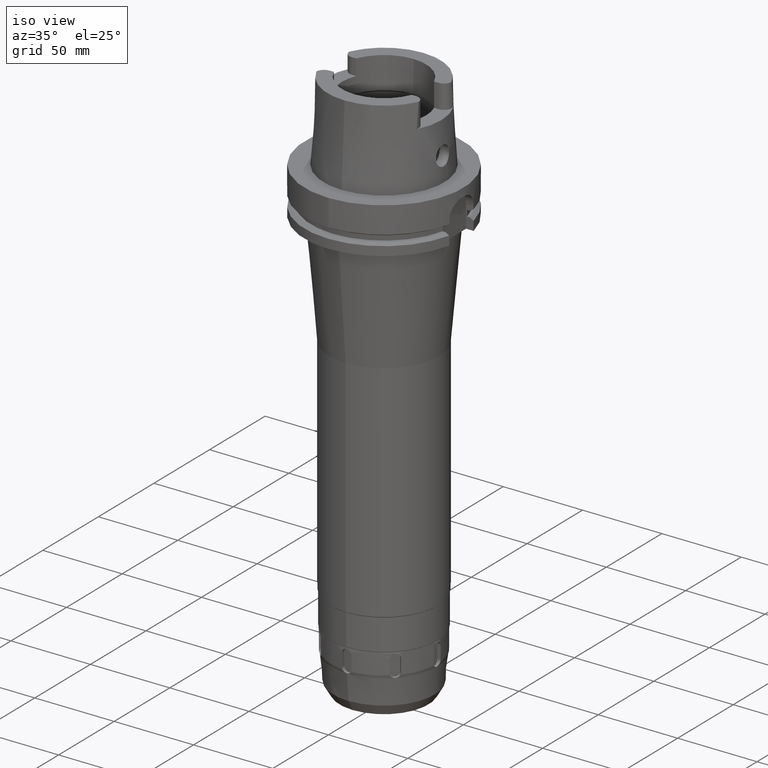
[diagram: clean part render]
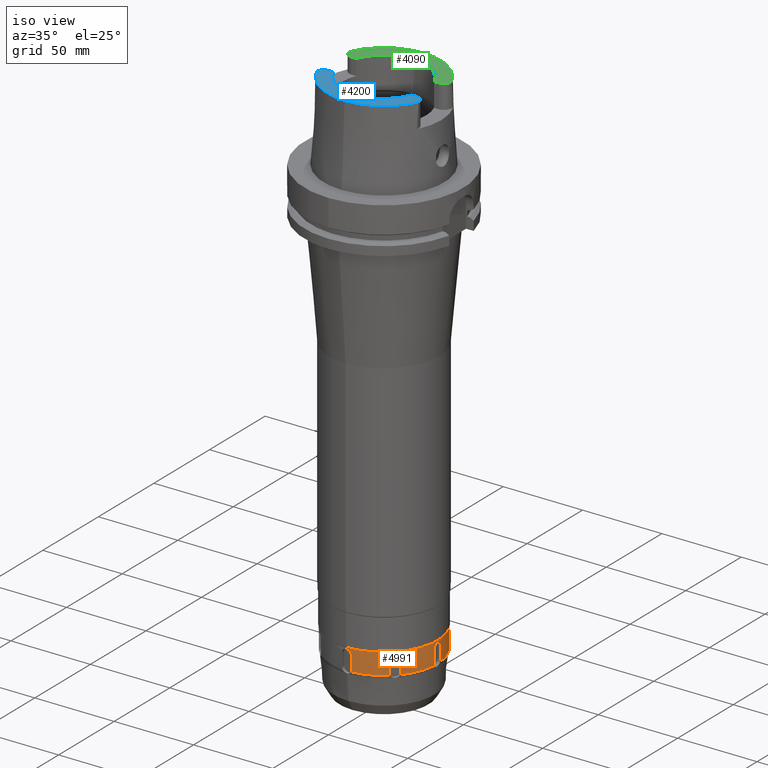
[diagram: same view with three faces highlighted in distinct colors, each labeled with its STEP entity id]
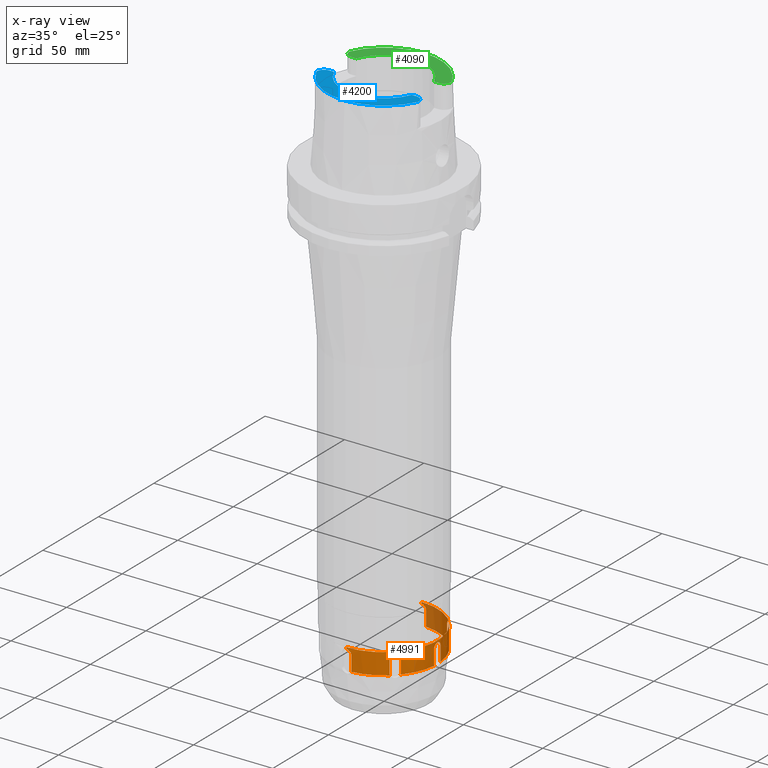
[diagram: x-ray of the same camera — body ghosted, the three highlighted faces saturated]
A machine part, iso view with three faces highlighted in distinct colors.
The next image is the same camera in x-ray (body ghosted, the three faces saturated) — at least one of them is partly hidden behind the body in this view.
Their STEP definitions:

[orange] entity #4991 — the highlighted cylindrical surface (partial cylindrical patch) has radius 33.75 mm, axis along (0, 0, 1).
#1115=CARTESIAN_POINT('',(2.572974637336E1,2.184130650372E1,-2.752999988523E2));
#1124=CARTESIAN_POINT('',(2.184127844835E1,2.572982219476E1,-2.752998305766E2));
#1129=CARTESIAN_POINT('',(0.E0,0.E0,-2.753E2));
#1130=DIRECTION('',(0.E0,0.E0,1.E0));
#1131=DIRECTION('',(6.471499945520E-1,7.623626988195E-1,0.E0));
#1132=AXIS2_PLACEMENT_3D('',#1129,#1130,#1131);
#1161=CARTESIAN_POINT('',(2.749614365686E0,-3.363784794479E1,
-2.752998335251E2));
#1166=CARTESIAN_POINT('',(0.E0,0.E0,-2.753E2));
#1167=DIRECTION('',(0.E0,0.E0,1.E0));
#1168=DIRECTION('',(8.146768445162E-2,-9.966759836527E-1,0.E0));
#1169=AXIS2_PLACEMENT_3D('',#1166,#1167,#1168);
#1183=CARTESIAN_POINT('',(2.572982219732E1,-2.184127844536E1,
-2.752998305682E2));
#1188=CARTESIAN_POINT('',(0.E0,0.E0,-2.753E2));
#1189=DIRECTION('',(0.E0,0.E0,1.E0));
#1190=DIRECTION('',(7.623626988355E-1,-6.471499945331E-1,0.E0));
#1191=AXIS2_PLACEMENT_3D('',#1188,#1189,#1190);
#1205=CARTESIAN_POINT('',(3.363784785298E1,2.749615655542E0,-2.752998305692E2));
#1210=CARTESIAN_POINT('',(0.E0,0.E0,-2.753E2));
#1211=DIRECTION('',(0.E0,0.E0,1.E0));
#1212=DIRECTION('',(9.966759836495E-1,8.146768449110E-2,0.E0));
#1213=AXIS2_PLACEMENT_3D('',#1210,#1211,#1212);
#1232=CARTESIAN_POINT('',(2.164906564405E1,2.589170633117E1,-2.661E2));
#1233=CARTESIAN_POINT('',(2.164906564405E1,2.589170633117E1,-2.657762900354E2));
#1234=CARTESIAN_POINT('',(2.172548758033E1,2.582811049954E1,-2.651632462130E2));
#1235=CARTESIAN_POINT('',(2.205776370793E1,2.554640606938E1,-2.643059235911E2));
#1236=CARTESIAN_POINT('',(2.256459709998E1,2.510189989961E1,-2.636332016839E2));
#1237=CARTESIAN_POINT('',(2.319608496984E1,2.452085469830E1,-2.631989895134E2));
#1238=CARTESIAN_POINT('',(2.363600564662E1,2.409370216023E1,-2.630999992646E2));
#1239=CARTESIAN_POINT('',(2.386485390342E1,2.386485390342E1,-2.630999992646E2));
#1244=CARTESIAN_POINT('',(2.386485390342E1,2.386485390342E1,-2.630999992646E2));
#1245=CARTESIAN_POINT('',(2.409343373051E1,2.363627407633E1,-2.630999992646E2));
#1246=CARTESIAN_POINT('',(2.452019567950E1,2.319677267820E1,-2.631987734806E2));
#1247=CARTESIAN_POINT('',(2.510095861163E1,2.256564400745E1,-2.636322353427E2));
#1248=CARTESIAN_POINT('',(2.554575486596E1,2.205852393052E1,-2.643045047276E2));
#1249=CARTESIAN_POINT('',(2.582791347362E1,2.172572448869E1,-2.651620396930E2));
#1250=CARTESIAN_POINT('',(2.589170633117E1,2.164906564405E1,-2.657757988084E2));
#1251=CARTESIAN_POINT('',(2.589170633117E1,2.164906564405E1,-2.661E2));
#1256=DIRECTION('',(-3.312153382080E-6,-3.593123775678E-6,-9.999999999881E-1));
#1257=VECTOR('',#1256,8.000000013231E0);
#1258=CARTESIAN_POINT('',(2.589170633117E1,2.164906564405E1,-2.661E2));
#1259=LINE('',#1258,#1257);
#1263=CARTESIAN_POINT('',(2.589167983394E1,2.164903689906E1,-2.741000000131E2));
#1264=CARTESIAN_POINT('',(2.589167983394E1,2.164903689906E1,-2.742380585447E2));
#1265=CARTESIAN_POINT('',(2.587960009176E1,2.166358552853E1,-2.745110854267E2));
#1266=CARTESIAN_POINT('',(2.582510724116E1,2.172855197206E1,-2.749159139675E2));
#1267=CARTESIAN_POINT('',(2.576558189888E1,2.179909114710E1,-2.751735415383E2));
#1268=CARTESIAN_POINT('',(2.572974637336E1,2.184130650372E1,-2.752999988523E2));
#1273=CARTESIAN_POINT('',(3.363784785298E1,2.749615655542E0,-2.752998305692E2));
#1274=CARTESIAN_POINT('',(3.363333853020E1,2.804782728787E0,-2.751733631601E2));
#1275=CARTESIAN_POINT('',(3.362550344315E1,2.896678164685E0,-2.749159972750E2));
#1276=CARTESIAN_POINT('',(3.361809574720E1,2.981178182667E0,-2.745110616971E2));
#1277=CARTESIAN_POINT('',(3.361640187336E1,3.000001464595E0,-2.742380585772E2));
#1278=CARTESIAN_POINT('',(3.361640187336E1,3.000001464595E0,-2.741000000002E2));
#1283=DIRECTION('',(4.664510289039E-8,-1.830743154815E-7,1.E0));
#1284=VECTOR('',#1283,8.000000000159E0);
#1285=CARTESIAN_POINT('',(3.361640187336E1,3.000001464595E0,-2.741000000002E2));
#1286=LINE('',#1285,#1284);
#1290=CARTESIAN_POINT('',(3.361640224652E1,3.E0,-2.661E2));
#1291=CARTESIAN_POINT('',(3.361640224652E1,3.E0,-2.657765242118E2));
#1292=CARTESIAN_POINT('',(3.362546078150E1,2.901094502573E0,-2.651637988241E2));
#1293=CARTESIAN_POINT('',(3.366118211249E1,2.467514086140E0,-2.643068067244E2));
#1294=CARTESIAN_POINT('',(3.370528813569E1,1.794443624510E0,-2.636333674698E2));
#1295=CARTESIAN_POINT('',(3.374095804270E1,9.372390158075E-1,
-2.631991538084E2));
#1296=CARTESIAN_POINT('',(3.375000005416E1,3.238285435396E-1,
-2.630999992658E2));
#1297=CARTESIAN_POINT('',(3.375000005416E1,-3.189301113319E-14,
-2.630999992658E2));
#1302=CARTESIAN_POINT('',(3.375000005416E1,-3.189301113319E-14,
-2.630999992658E2));
#1303=CARTESIAN_POINT('',(3.375000005416E1,-3.231069847003E-1,
-2.630999992658E2));
#1304=CARTESIAN_POINT('',(3.374099873256E1,-9.354509905620E-1,
-2.631987118667E2));
#1305=CARTESIAN_POINT('',(3.370540883619E1,-1.792197419109E0,
-2.636318032273E2));
#1306=CARTESIAN_POINT('',(3.366130667837E1,-2.465895814512E0,
-2.643045081205E2));
#1307=CARTESIAN_POINT('',(3.362550430514E1,-2.900624419884E0,
-2.651619127088E2));
#1308=CARTESIAN_POINT('',(3.361640224652E1,-3.E0,-2.657757581241E2));
#1309=CARTESIAN_POINT('',(3.361640224652E1,-3.E0,-2.661E2));
#1314=DIRECTION('',(-4.882768232324E-6,-1.986760747075E-7,-9.999999999881E-1));
#1315=VECTOR('',#1314,8.000000013231E0);
#1316=CARTESIAN_POINT('',(3.361640224652E1,-3.E0,-2.661E2));
#1317=LINE('',#1316,#1315);
#1321=CARTESIAN_POINT('',(3.361636318437E1,-3.000001589409E0,
-2.741000000131E2));
#1322=CARTESIAN_POINT('',(3.361636318437E1,-3.000001589409E0,
-2.742380585447E2));
#1323=CARTESIAN_POINT('',(3.361810895132E1,-2.981172487244E0,
-2.745110854267E2));
#1324=CARTESIAN_POINT('',(3.362551489990E1,-2.896702010275E0,
-2.749159139675E2));
#1325=CARTESIAN_POINT('',(3.363330285573E1,-2.804732508115E0,
-2.751735415382E2));
#1326=CARTESIAN_POINT('',(3.363781407756E1,-2.749542200088E0,
-2.752999988523E2));
#1331=CARTESIAN_POINT('',(2.572982219732E1,-2.184127844536E1,
-2.752998305682E2));
#1332=CARTESIAN_POINT('',(2.576564263611E1,-2.179908086115E1,
-2.751733631591E2));
#1333=CARTESIAN_POINT('',(2.582508227854E1,-2.172856073240E1,
-2.749159972755E2));
#1334=CARTESIAN_POINT('',(2.587959478234E1,-2.166357216451E1,
-2.745110616970E2));
#1335=CARTESIAN_POINT('',(2.589170710293E1,-2.164906434456E1,
-2.742380585772E2));
#1336=CARTESIAN_POINT('',(2.589170710293E1,-2.164906434456E1,
-2.741000000002E2));
#1341=DIRECTION('',(-9.647002085863E-8,-1.624361587428E-7,1.E0));
#1342=VECTOR('',#1341,8.000000000160E0);
#1343=CARTESIAN_POINT('',(2.589170710293E1,-2.164906434456E1,
-2.741000000002E2));
#1344=LINE('',#1343,#1342);
#1348=CARTESIAN_POINT('',(2.589170633117E1,-2.164906564405E1,-2.661E2));
#1349=CARTESIAN_POINT('',(2.589170633117E1,-2.164906564405E1,
-2.657764475953E2));
#1350=CARTESIAN_POINT('',(2.582817629502E1,-2.172540841174E1,
-2.651636154931E2));
#1351=CARTESIAN_POINT('',(2.554655747714E1,-2.205758832734E1,
-2.643062119220E2));
#1352=CARTESIAN_POINT('',(2.510199332659E1,-2.256449406994E1,
-2.636332839008E2));
#1353=CARTESIAN_POINT('',(2.452092489901E1,-2.319601141922E1,
-2.631990170107E2));
#1354=CARTESIAN_POINT('',(2.409372786133E1,-2.363597994551E1,
-2.630999992646E2));
#1355=CARTESIAN_POINT('',(2.386485390342E1,-2.386485390342E1,
-2.630999992646E2));
#1360=CARTESIAN_POINT('',(2.386485390342E1,-2.386485390342E1,
-2.630999992646E2));
#1361=CARTESIAN_POINT('',(2.363626550475E1,-2.409344230208E1,
-2.630999992646E2));
#1362=CARTESIAN_POINT('',(2.319673081999E1,-2.452023882115E1,
-2.631987581832E2));
#1363=CARTESIAN_POINT('',(2.256531877008E1,-2.510125347810E1,
-2.636325051195E2));
#1364=CARTESIAN_POINT('',(2.205821148842E1,-2.554602301253E1,
-2.643050563678E2));
#1365=CARTESIAN_POINT('',(2.172559142616E1,-2.582802441680E1,
-2.651626620576E2));
#1366=CARTESIAN_POINT('',(2.164906564405E1,-2.589170633117E1,
-2.657760599394E2));
#1367=CARTESIAN_POINT('',(2.164906564405E1,-2.589170633117E1,-2.661E2));
#1372=DIRECTION('',(-3.593082684103E-6,3.312177783450E-6,-9.999999999881E-1));
#1373=VECTOR('',#1372,8.000000013231E0);
#1374=CARTESIAN_POINT('',(2.164906564405E1,-2.589170633117E1,-2.661E2));
#1375=LINE('',#1374,#1373);
#1379=CARTESIAN_POINT('',(2.164903689939E1,-2.589167983375E1,
-2.741000000131E2));
#1380=CARTESIAN_POINT('',(2.164903689939E1,-2.589167983375E1,
-2.742380585446E2));
#1381=CARTESIAN_POINT('',(2.166358553057E1,-2.587960009002E1,
-2.745110854265E2));
#1382=CARTESIAN_POINT('',(2.172855197353E1,-2.582510723991E1,
-2.749159139670E2));
#1383=CARTESIAN_POINT('',(2.179909114742E1,-2.576558189866E1,
-2.751735415380E2));
#1384=CARTESIAN_POINT('',(2.184130650409E1,-2.572974637309E1,
-2.752999988522E2));
#1389=CARTESIAN_POINT('',(2.749614365686E0,-3.363784794479E1,
-2.752998335251E2));
#1390=CARTESIAN_POINT('',(2.804781846415E0,-3.363333858870E1,
-2.751733662947E2));
#1391=CARTESIAN_POINT('',(2.896678574588E0,-3.362550341602E1,
-2.749159958116E2));
#1392=CARTESIAN_POINT('',(2.981178062673E0,-3.361809575518E1,
-2.745110621149E2));
#1393=CARTESIAN_POINT('',(3.000001464264E0,-3.361640187344E1,
-2.742380585772E2));
#1394=CARTESIAN_POINT('',(3.000001464264E0,-3.361640187344E1,
-2.741000000002E2));
#1399=DIRECTION('',(-1.830329524574E-7,-4.663456376526E-8,1.E0));
#1400=VECTOR('',#1399,8.000000000159E0);
#1401=CARTESIAN_POINT('',(3.000001464264E0,-3.361640187344E1,
-2.741000000002E2));
#1402=LINE('',#1401,#1400);
#1406=CARTESIAN_POINT('',(3.E0,-3.361640224652E1,-2.661E2));
#1407=CARTESIAN_POINT('',(3.E0,-3.361640224652E1,-2.657763211148E2));
#1408=CARTESIAN_POINT('',(2.900998212270E0,-3.362547078604E1,
-2.651633463576E2));
#1409=CARTESIAN_POINT('',(2.467070875475E0,-3.366121330021E1,
-2.643062840599E2));
#1410=CARTESIAN_POINT('',(1.794617371397E0,-3.370527563701E1,
-2.636335682929E2));
#1411=CARTESIAN_POINT('',(9.374200708088E-1,-3.374095419874E1,
-2.631991851139E2));
#1412=CARTESIAN_POINT('',(3.239220140160E-1,-3.375E1,-2.631E2));
#1413=CARTESIAN_POINT('',(8.440849451245E-14,-3.375E1,-2.631E2));
#1418=DIRECTION('',(-4.837532821173E-14,-2.706829469562E-14,-1.E0));
#1419=VECTOR('',#1418,1.05E0);
#1420=CARTESIAN_POINT('',(0.E0,3.375E1,-2.6205E2));
#1421=LINE('',#1420,#1419);
#1425=CARTESIAN_POINT('',(-4.666091167519E-14,3.375E1,-2.631E2));
#1426=CARTESIAN_POINT('',(3.235493710465E-1,3.375E1,-2.631E2));
#1427=CARTESIAN_POINT('',(9.365025065704E-1,3.374097536358E1,
-2.631989548584E2));
#1428=CARTESIAN_POINT('',(1.793511287900E0,3.370533548089E1,-2.636327902259E2));
#1429=CARTESIAN_POINT('',(2.466309743144E0,3.366127205772E1,-2.643051929952E2));
#1430=CARTESIAN_POINT('',(2.900785903624E0,3.362549046289E1,-2.651624839744E2));
#1431=CARTESIAN_POINT('',(3.E0,3.361640224652E1,-2.657759729595E2));
#1432=CARTESIAN_POINT('',(3.E0,3.361640224652E1,-2.661E2));
#1437=DIRECTION('',(1.986142549916E-7,-4.882752476927E-6,-9.999999999881E-1));
#1438=VECTOR('',#1437,8.000000013230E0);
#1439=CARTESIAN_POINT('',(3.E0,3.361640224652E1,-2.661E2));
#1440=LINE('',#1439,#1438);
#1444=CARTESIAN_POINT('',(3.000001588914E0,3.361636318450E1,-2.741000000131E2));
#1445=CARTESIAN_POINT('',(3.000001588914E0,3.361636318450E1,-2.742380585446E2));
#1446=CARTESIAN_POINT('',(2.981172482818E0,3.361810895166E1,-2.745110854294E2));
#1447=CARTESIAN_POINT('',(2.896702010706E0,3.362551489991E1,-2.749159139562E2));
#1448=CARTESIAN_POINT('',(2.804732501199E0,3.363330285624E1,-2.751735415606E2));
#1449=CARTESIAN_POINT('',(2.749542190119E0,3.363781407832E1,-2.752999988736E2));
#1454=CARTESIAN_POINT('',(2.184127844835E1,2.572982219476E1,-2.752998305766E2));
#1455=CARTESIAN_POINT('',(2.179908086323E1,2.576564263433E1,-2.751733631679E2));
#1456=CARTESIAN_POINT('',(2.172856073233E1,2.582508227862E1,-2.749159972710E2));
#1457=CARTESIAN_POINT('',(2.166357216590E1,2.587959478115E1,-2.745110616981E2));
#1458=CARTESIAN_POINT('',(2.164906434474E1,2.589170710282E1,-2.742380585772E2));
#1459=CARTESIAN_POINT('',(2.164906434474E1,2.589170710282E1,-2.741000000002E2));
#1464=DIRECTION('',(1.624132179824E-7,-9.645639664576E-8,1.E0));
#1465=VECTOR('',#1464,8.000000000159E0);
#1466=CARTESIAN_POINT('',(2.164906434474E1,2.589170710282E1,-2.741000000002E2));
#1467=LINE('',#1466,#1465);
#2064=DIRECTION('',(5.577681504256E-14,2.706829469562E-14,-1.E0));
#2065=VECTOR('',#2064,1.05E0);
#2066=CARTESIAN_POINT('',(2.584283871776E-14,-3.375E1,-2.6205E2));
#2067=LINE('',#2066,#2065);
#2429=CARTESIAN_POINT('',(0.E0,0.E0,-2.6205E2));
#2430=DIRECTION('',(0.E0,0.E0,-1.E0));
#2431=DIRECTION('',(0.E0,1.E0,0.E0));
#2432=AXIS2_PLACEMENT_3D('',#2429,#2430,#2431);
#3711=VERTEX_POINT('',#1115);
#3712=VERTEX_POINT('',#1124);
#3713=CARTESIAN_POINT('',(2.749534261608E0,3.363781445553E1,-2.753E2));
#3714=VERTEX_POINT('',#3713);
#3718=VERTEX_POINT('',#1161);
#3719=CARTESIAN_POINT('',(2.184131238393E1,-2.572974102761E1,-2.753E2));
#3720=VERTEX_POINT('',#3719);
#3721=VERTEX_POINT('',#1183);
#3722=CARTESIAN_POINT('',(3.363781445537E1,-2.749534263600E0,-2.753E2));
#3723=VERTEX_POINT('',#3722);
#3724=VERTEX_POINT('',#1205);
#3725=VERTEX_POINT('',#1263);
#3732=CARTESIAN_POINT('',(2.164906434474E1,2.589170710282E1,-2.741000000002E2));
#3733=VERTEX_POINT('',#3732);
#3734=VERTEX_POINT('',#1244);
#3735=VERTEX_POINT('',#1251);
#3736=VERTEX_POINT('',#1232);
#3737=VERTEX_POINT('',#1278);
#3738=CARTESIAN_POINT('',(3.361640224652E1,3.E0,-2.661E2));
#3739=VERTEX_POINT('',#3738);
#3740=VERTEX_POINT('',#1302);
#3741=VERTEX_POINT('',#1309);
#3742=CARTESIAN_POINT('',(3.361636318437E1,-3.000001589409E0,
-2.741000000131E2));
#3743=VERTEX_POINT('',#3742);
#3744=VERTEX_POINT('',#1336);
#3745=CARTESIAN_POINT('',(2.589170633117E1,-2.164906564405E1,-2.661E2));
#3746=VERTEX_POINT('',#3745);
#3747=VERTEX_POINT('',#1360);
#3748=VERTEX_POINT('',#1367);
#3749=CARTESIAN_POINT('',(2.164903689939E1,-2.589167983375E1,
-2.741000000131E2));
#3750=VERTEX_POINT('',#3749);
#3751=VERTEX_POINT('',#1394);
#3752=CARTESIAN_POINT('',(3.E0,-3.361640224652E1,-2.661E2));
#3753=VERTEX_POINT('',#3752);
#3754=VERTEX_POINT('',#1413);
#3755=CARTESIAN_POINT('',(2.584283871776E-14,-3.375E1,-2.6205E2));
#3756=VERTEX_POINT('',#3755);
#3757=CARTESIAN_POINT('',(0.E0,3.375E1,-2.6205E2));
#3758=VERTEX_POINT('',#3757);
#3759=CARTESIAN_POINT('',(-4.666091167519E-14,3.375E1,-2.631E2));
#3760=VERTEX_POINT('',#3759);
#3761=VERTEX_POINT('',#1432);
#3762=CARTESIAN_POINT('',(3.000001588914E0,3.361636318450E1,-2.741000000131E2));
#3763=VERTEX_POINT('',#3762);
#4928=CARTESIAN_POINT('',(0.E0,0.E0,-3.175E2));
#4929=DIRECTION('',(0.E0,0.E0,1.E0));
#4930=DIRECTION('',(0.E0,1.E0,0.E0));
#4931=AXIS2_PLACEMENT_3D('',#4928,#4929,#4930);
#4932=CYLINDRICAL_SURFACE('',#4931,3.375E1);
#4934=ORIENTED_EDGE('',*,*,#4933,.T.);
#4936=ORIENTED_EDGE('',*,*,#4935,.T.);
#4938=ORIENTED_EDGE('',*,*,#4937,.T.);
#4939=ORIENTED_EDGE('',*,*,#4913,.T.);
#4940=ORIENTED_EDGE('',*,*,#4902,.F.);
#4942=ORIENTED_EDGE('',*,*,#4941,.T.);
#4944=ORIENTED_EDGE('',*,*,#4943,.T.);
#4946=ORIENTED_EDGE('',*,*,#4945,.T.);
#4948=ORIENTED_EDGE('',*,*,#4947,.T.);
#4950=ORIENTED_EDGE('',*,*,#4949,.T.);
#4952=ORIENTED_EDGE('',*,*,#4951,.T.);
#4953=ORIENTED_EDGE('',*,*,#4898,.F.);
#4955=ORIENTED_EDGE('',*,*,#4954,.T.);
#4957=ORIENTED_EDGE('',*,*,#4956,.T.);
#4959=ORIENTED_EDGE('',*,*,#4958,.T.);
#4961=ORIENTED_EDGE('',*,*,#4960,.T.);
#4963=ORIENTED_EDGE('',*,*,#4962,.T.);
#4965=ORIENTED_EDGE('',*,*,#4964,.T.);
#4966=ORIENTED_EDGE('',*,*,#4894,.F.);
#4968=ORIENTED_EDGE('',*,*,#4967,.T.);
#4970=ORIENTED_EDGE('',*,*,#4969,.T.);
#4972=ORIENTED_EDGE('',*,*,#4971,.T.);
#4974=ORIENTED_EDGE('',*,*,#4973,.F.);
#4976=ORIENTED_EDGE('',*,*,#4975,.F.);
#4978=ORIENTED_EDGE('',*,*,#4977,.T.);
#4980=ORIENTED_EDGE('',*,*,#4979,.T.);
#4982=ORIENTED_EDGE('',*,*,#4981,.T.);
#4984=ORIENTED_EDGE('',*,*,#4983,.T.);
#4985=ORIENTED_EDGE('',*,*,#4883,.F.);
#4986=ORIENTED_EDGE('',*,*,#4923,.T.);
#4988=ORIENTED_EDGE('',*,*,#4987,.T.);
#4989=EDGE_LOOP('',(#4934,#4936,#4938,#4939,#4940,#4942,#4944,#4946,#4948,#4950,
#4952,#4953,#4955,#4957,#4959,#4961,#4963,#4965,#4966,#4968,#4970,#4972,#4974,
#4976,#4978,#4980,#4982,#4984,#4985,#4986,#4988));
#4990=FACE_OUTER_BOUND('',#4989,.F.);
#1133=CIRCLE('',#1132,3.375000000001E1);
#1170=CIRCLE('',#1169,3.375000000001E1);
#1192=CIRCLE('',#1191,3.375000000001E1);
#1214=CIRCLE('',#1213,3.375000000001E1);
#1240=B_SPLINE_CURVE_WITH_KNOTS('',3,(#1232,#1233,#1234,#1235,#1236,#1237,#1238,
#1239),.UNSPECIFIED.,.F.,.F.,(4,1,1,1,1,4),(0.E0,2.E-1,4.E-1,6.E-1,8.E-1,1.E0),
.UNSPECIFIED.);
#1252=B_SPLINE_CURVE_WITH_KNOTS('',3,(#1244,#1245,#1246,#1247,#1248,#1249,#1250,
#1251),.UNSPECIFIED.,.F.,.F.,(4,1,1,1,1,4),(0.E0,2.E-1,4.E-1,6.E-1,8.E-1,1.E0),
.UNSPECIFIED.);
#1269=B_SPLINE_CURVE_WITH_KNOTS('',3,(#1263,#1264,#1265,#1266,#1267,#1268),
.UNSPECIFIED.,.F.,.F.,(4,1,1,4),(0.E0,3.333333333333E-1,6.666666666667E-1,1.E0),
.UNSPECIFIED.);
#1279=B_SPLINE_CURVE_WITH_KNOTS('',3,(#1273,#1274,#1275,#1276,#1277,#1278),
.UNSPECIFIED.,.F.,.F.,(4,1,1,4),(0.E0,3.333333333333E-1,6.666666666667E-1,1.E0),
.UNSPECIFIED.);
#1298=B_SPLINE_CURVE_WITH_KNOTS('',3,(#1290,#1291,#1292,#1293,#1294,#1295,#1296,
#1297),.UNSPECIFIED.,.F.,.F.,(4,1,1,1,1,4),(0.E0,2.E-1,4.E-1,6.E-1,8.E-1,1.E0),
.UNSPECIFIED.);
#1310=B_SPLINE_CURVE_WITH_KNOTS('',3,(#1302,#1303,#1304,#1305,#1306,#1307,#1308,
#1309),.UNSPECIFIED.,.F.,.F.,(4,1,1,1,1,4),(0.E0,2.E-1,4.E-1,6.E-1,8.E-1,1.E0),
.UNSPECIFIED.);
#1327=B_SPLINE_CURVE_WITH_KNOTS('',3,(#1321,#1322,#1323,#1324,#1325,#1326),
.UNSPECIFIED.,.F.,.F.,(4,1,1,4),(0.E0,3.333333333333E-1,6.666666666667E-1,1.E0),
.UNSPECIFIED.);
#1337=B_SPLINE_CURVE_WITH_KNOTS('',3,(#1331,#1332,#1333,#1334,#1335,#1336),
.UNSPECIFIED.,.F.,.F.,(4,1,1,4),(0.E0,3.333333333333E-1,6.666666666667E-1,1.E0),
.UNSPECIFIED.);
#1356=B_SPLINE_CURVE_WITH_KNOTS('',3,(#1348,#1349,#1350,#1351,#1352,#1353,#1354,
#1355),.UNSPECIFIED.,.F.,.F.,(4,1,1,1,1,4),(0.E0,2.E-1,4.E-1,6.E-1,8.E-1,1.E0),
.UNSPECIFIED.);
#1368=B_SPLINE_CURVE_WITH_KNOTS('',3,(#1360,#1361,#1362,#1363,#1364,#1365,#1366,
#1367),.UNSPECIFIED.,.F.,.F.,(4,1,1,1,1,4),(0.E0,2.E-1,4.E-1,6.E-1,8.E-1,1.E0),
.UNSPECIFIED.);
#1385=B_SPLINE_CURVE_WITH_KNOTS('',3,(#1379,#1380,#1381,#1382,#1383,#1384),
.UNSPECIFIED.,.F.,.F.,(4,1,1,4),(0.E0,3.333333333333E-1,6.666666666667E-1,1.E0),
.UNSPECIFIED.);
#1395=B_SPLINE_CURVE_WITH_KNOTS('',3,(#1389,#1390,#1391,#1392,#1393,#1394),
.UNSPECIFIED.,.F.,.F.,(4,1,1,4),(0.E0,3.333333333333E-1,6.666666666667E-1,1.E0),
.UNSPECIFIED.);
#1414=B_SPLINE_CURVE_WITH_KNOTS('',3,(#1406,#1407,#1408,#1409,#1410,#1411,#1412,
#1413),.UNSPECIFIED.,.F.,.F.,(4,1,1,1,1,4),(0.E0,2.E-1,4.E-1,6.E-1,8.E-1,1.E0),
.UNSPECIFIED.);
#1433=B_SPLINE_CURVE_WITH_KNOTS('',3,(#1425,#1426,#1427,#1428,#1429,#1430,#1431,
#1432),.UNSPECIFIED.,.F.,.F.,(4,1,1,1,1,4),(0.E0,2.E-1,4.E-1,6.E-1,8.E-1,1.E0),
.UNSPECIFIED.);
#1450=B_SPLINE_CURVE_WITH_KNOTS('',3,(#1444,#1445,#1446,#1447,#1448,#1449),
.UNSPECIFIED.,.F.,.F.,(4,1,1,4),(0.E0,3.333333333333E-1,6.666666666667E-1,1.E0),
.UNSPECIFIED.);
#1460=B_SPLINE_CURVE_WITH_KNOTS('',3,(#1454,#1455,#1456,#1457,#1458,#1459),
.UNSPECIFIED.,.F.,.F.,(4,1,1,4),(0.E0,3.333333333333E-1,6.666666666667E-1,1.E0),
.UNSPECIFIED.);
#2433=CIRCLE('',#2432,3.375E1);
#4883=EDGE_CURVE('',#3712,#3714,#1133,.T.);
#4894=EDGE_CURVE('',#3718,#3720,#1170,.T.);
#4898=EDGE_CURVE('',#3721,#3723,#1192,.T.);
#4902=EDGE_CURVE('',#3724,#3711,#1214,.T.);
#4913=EDGE_CURVE('',#3725,#3711,#1269,.T.);
#4923=EDGE_CURVE('',#3712,#3733,#1460,.T.);
#4933=EDGE_CURVE('',#3736,#3734,#1240,.T.);
#4935=EDGE_CURVE('',#3734,#3735,#1252,.T.);
#4937=EDGE_CURVE('',#3735,#3725,#1259,.T.);
#4941=EDGE_CURVE('',#3724,#3737,#1279,.T.);
#4943=EDGE_CURVE('',#3737,#3739,#1286,.T.);
#4945=EDGE_CURVE('',#3739,#3740,#1298,.T.);
#4947=EDGE_CURVE('',#3740,#3741,#1310,.T.);
#4949=EDGE_CURVE('',#3741,#3743,#1317,.T.);
#4951=EDGE_CURVE('',#3743,#3723,#1327,.T.);
#4954=EDGE_CURVE('',#3721,#3744,#1337,.T.);
#4956=EDGE_CURVE('',#3744,#3746,#1344,.T.);
#4958=EDGE_CURVE('',#3746,#3747,#1356,.T.);
#4960=EDGE_CURVE('',#3747,#3748,#1368,.T.);
#4962=EDGE_CURVE('',#3748,#3750,#1375,.T.);
#4964=EDGE_CURVE('',#3750,#3720,#1385,.T.);
#4967=EDGE_CURVE('',#3718,#3751,#1395,.T.);
#4969=EDGE_CURVE('',#3751,#3753,#1402,.T.);
#4971=EDGE_CURVE('',#3753,#3754,#1414,.T.);
#4973=EDGE_CURVE('',#3756,#3754,#2067,.T.);
#4975=EDGE_CURVE('',#3758,#3756,#2433,.T.);
#4977=EDGE_CURVE('',#3758,#3760,#1421,.T.);
#4979=EDGE_CURVE('',#3760,#3761,#1433,.T.);
#4981=EDGE_CURVE('',#3761,#3763,#1440,.T.);
#4983=EDGE_CURVE('',#3763,#3714,#1450,.T.);
#4987=EDGE_CURVE('',#3733,#3736,#1467,.T.);
#4991=ADVANCED_FACE('',(#4990),#4932,.T.);

[blue] entity #4200 — the highlighted planar face has unit normal (0, 0, 1).
#168=DIRECTION('',(-1.E0,1.442003377037E-13,0.E0));
#169=VECTOR('',#168,2.833294842218E0);
#170=CARTESIAN_POINT('',(-2.453670515778E1,-1.001E1,5.E1));
#171=LINE('',#170,#169);
#175=CARTESIAN_POINT('',(-2.737E1,-1.489E1,5.E1));
#176=DIRECTION('',(0.E0,0.E0,-1.E0));
#177=DIRECTION('',(-9.999456747287E-1,1.042341553725E-2,0.E0));
#178=AXIS2_PLACEMENT_3D('',#175,#176,#177);
#183=CARTESIAN_POINT('',(0.E0,0.E0,5.E1));
#184=DIRECTION('',(0.E0,0.E0,1.E0));
#185=DIRECTION('',(-9.259134021805E-1,-3.777358490566E-1,0.E0));
#186=AXIS2_PLACEMENT_3D('',#183,#184,#185);
#191=CARTESIAN_POINT('',(0.E0,0.E0,5.E1));
#192=DIRECTION('',(0.E0,0.E0,1.E0));
#193=DIRECTION('',(0.E0,-1.E0,0.E0));
#194=AXIS2_PLACEMENT_3D('',#191,#192,#193);
#199=CARTESIAN_POINT('',(2.737E1,-1.489E1,5.E1));
#200=DIRECTION('',(0.E0,0.E0,-1.E0));
#201=DIRECTION('',(0.E0,1.E0,0.E0));
#202=AXIS2_PLACEMENT_3D('',#199,#200,#201);
#207=CARTESIAN_POINT('',(0.E0,0.E0,5.E1));
#208=DIRECTION('',(0.E0,0.E0,-1.E0));
#209=DIRECTION('',(9.084449337998E-1,-4.180045481254E-1,0.E0));
#210=AXIS2_PLACEMENT_3D('',#207,#208,#209);
#215=CARTESIAN_POINT('',(0.E0,0.E0,5.E1));
#216=DIRECTION('',(0.E0,0.E0,-1.E0));
#217=DIRECTION('',(0.E0,-1.E0,0.E0));
#218=AXIS2_PLACEMENT_3D('',#215,#216,#217);
#476=DIRECTION('',(-1.E0,-1.454542536838E-13,0.E0));
#477=VECTOR('',#476,2.833294842218E0);
#478=CARTESIAN_POINT('',(2.737E1,-1.001E1,5.E1));
#479=LINE('',#478,#477);
#3564=CARTESIAN_POINT('',(-3.224973489268E1,-1.483913373218E1,5.E1));
#3565=CARTESIAN_POINT('',(-2.737E1,-1.001E1,5.E1));
#3566=VERTEX_POINT('',#3564);
#3567=VERTEX_POINT('',#3565);
#3568=CARTESIAN_POINT('',(-2.453670515778E1,-1.001E1,5.E1));
#3569=VERTEX_POINT('',#3568);
#3570=CARTESIAN_POINT('',(0.E0,-2.65E1,5.E1));
#3571=VERTEX_POINT('',#3570);
#3572=CARTESIAN_POINT('',(2.453670515778E1,-1.001E1,5.E1));
#3573=VERTEX_POINT('',#3572);
#3574=CARTESIAN_POINT('',(2.737E1,-1.001E1,5.E1));
#3575=VERTEX_POINT('',#3574);
#3576=CARTESIAN_POINT('',(3.224973489268E1,-1.483913373218E1,5.E1));
#3577=VERTEX_POINT('',#3576);
#3578=CARTESIAN_POINT('',(0.E0,-3.549993366992E1,5.E1));
#3579=VERTEX_POINT('',#3578);
#4179=CARTESIAN_POINT('',(0.E0,0.E0,5.E1));
#4180=DIRECTION('',(0.E0,0.E0,1.E0));
#4181=DIRECTION('',(0.E0,1.E0,0.E0));
#4182=AXIS2_PLACEMENT_3D('',#4179,#4180,#4181);
#4183=PLANE('',#4182);
#4185=ORIENTED_EDGE('',*,*,#4184,.T.);
#4186=ORIENTED_EDGE('',*,*,#4170,.F.);
#4187=ORIENTED_EDGE('',*,*,#4137,.T.);
#4189=ORIENTED_EDGE('',*,*,#4188,.T.);
#4191=ORIENTED_EDGE('',*,*,#4190,.F.);
#4193=ORIENTED_EDGE('',*,*,#4192,.T.);
#4195=ORIENTED_EDGE('',*,*,#4194,.T.);
#4197=ORIENTED_EDGE('',*,*,#4196,.T.);
#4198=EDGE_LOOP('',(#4185,#4186,#4187,#4189,#4191,#4193,#4195,#4197));
#4199=FACE_OUTER_BOUND('',#4198,.F.);
#179=CIRCLE('',#178,4.88E0);
#187=CIRCLE('',#186,2.65E1);
#195=CIRCLE('',#194,2.65E1);
#203=CIRCLE('',#202,4.88E0);
#211=CIRCLE('',#210,3.549993366992E1);
#219=CIRCLE('',#218,3.549993366992E1);
#4137=EDGE_CURVE('',#3569,#3571,#187,.T.);
#4170=EDGE_CURVE('',#3569,#3567,#171,.T.);
#4184=EDGE_CURVE('',#3566,#3567,#179,.T.);
#4188=EDGE_CURVE('',#3571,#3573,#195,.T.);
#4190=EDGE_CURVE('',#3575,#3573,#479,.T.);
#4192=EDGE_CURVE('',#3575,#3577,#203,.T.);
#4194=EDGE_CURVE('',#3577,#3579,#211,.T.);
#4196=EDGE_CURVE('',#3579,#3566,#219,.T.);
#4200=ADVANCED_FACE('',(#4199),#4183,.T.);

[green] entity #4090 — the highlighted planar face has unit normal (0, 0, 1).
#17=CARTESIAN_POINT('',(-2.737E1,1.489E1,5.E1));
#18=DIRECTION('',(0.E0,0.E0,-1.E0));
#19=DIRECTION('',(0.E0,-1.E0,0.E0));
#20=AXIS2_PLACEMENT_3D('',#17,#18,#19);
#26=CARTESIAN_POINT('',(0.E0,0.E0,5.E1));
#27=DIRECTION('',(0.E0,0.E0,-1.E0));
#28=DIRECTION('',(-9.084449337998E-1,4.180045481253E-1,0.E0));
#29=AXIS2_PLACEMENT_3D('',#26,#27,#28);
#34=CARTESIAN_POINT('',(0.E0,0.E0,5.E1));
#35=DIRECTION('',(0.E0,0.E0,-1.E0));
#36=DIRECTION('',(0.E0,1.E0,0.E0));
#37=AXIS2_PLACEMENT_3D('',#34,#35,#36);
#42=CARTESIAN_POINT('',(2.737E1,1.489E1,5.E1));
#43=DIRECTION('',(0.E0,0.E0,-1.E0));
#44=DIRECTION('',(9.999456747286E-1,-1.042341553749E-2,0.E0));
#45=AXIS2_PLACEMENT_3D('',#42,#43,#44);
#50=CARTESIAN_POINT('',(0.E0,0.E0,5.E1));
#51=DIRECTION('',(0.E0,0.E0,1.E0));
#52=DIRECTION('',(9.259134021805E-1,3.777358490566E-1,0.E0));
#53=AXIS2_PLACEMENT_3D('',#50,#51,#52);
#58=CARTESIAN_POINT('',(0.E0,0.E0,5.E1));
#59=DIRECTION('',(0.E0,0.E0,1.E0));
#60=DIRECTION('',(0.E0,1.E0,0.E0));
#61=AXIS2_PLACEMENT_3D('',#58,#59,#60);
#80=DIRECTION('',(1.E0,1.429464217237E-13,0.E0));
#81=VECTOR('',#80,2.833294842218E0);
#82=CARTESIAN_POINT('',(-2.737E1,1.001E1,5.E1));
#83=LINE('',#82,#81);
#3527=DIRECTION('',(1.E0,-1.423194637337E-13,0.E0));
#3528=VECTOR('',#3527,2.833294842218E0);
#3529=CARTESIAN_POINT('',(2.453670515778E1,1.001E1,5.E1));
#3530=LINE('',#3529,#3528);
#3548=CARTESIAN_POINT('',(-2.737E1,1.001E1,5.E1));
#3549=CARTESIAN_POINT('',(-3.224973489268E1,1.483913373218E1,5.E1));
#3550=VERTEX_POINT('',#3548);
#3551=VERTEX_POINT('',#3549);
#3552=CARTESIAN_POINT('',(0.E0,3.549993366992E1,5.E1));
#3553=VERTEX_POINT('',#3552);
#3554=CARTESIAN_POINT('',(3.224973489267E1,1.483913373218E1,5.E1));
#3555=VERTEX_POINT('',#3554);
#3556=CARTESIAN_POINT('',(2.737E1,1.001E1,5.E1));
#3557=VERTEX_POINT('',#3556);
#3558=CARTESIAN_POINT('',(2.453670515778E1,1.001E1,5.E1));
#3559=VERTEX_POINT('',#3558);
#3560=CARTESIAN_POINT('',(0.E0,2.65E1,5.E1));
#3561=VERTEX_POINT('',#3560);
#3562=CARTESIAN_POINT('',(-2.453670515778E1,1.001E1,5.E1));
#3563=VERTEX_POINT('',#3562);
#4067=CARTESIAN_POINT('',(0.E0,0.E0,5.E1));
#4068=DIRECTION('',(0.E0,0.E0,1.E0));
#4069=DIRECTION('',(0.E0,1.E0,0.E0));
#4070=AXIS2_PLACEMENT_3D('',#4067,#4068,#4069);
#4071=PLANE('',#4070);
#4073=ORIENTED_EDGE('',*,*,#4072,.T.);
#4075=ORIENTED_EDGE('',*,*,#4074,.T.);
#4077=ORIENTED_EDGE('',*,*,#4076,.T.);
#4079=ORIENTED_EDGE('',*,*,#4078,.T.);
#4081=ORIENTED_EDGE('',*,*,#4080,.F.);
#4083=ORIENTED_EDGE('',*,*,#4082,.T.);
#4085=ORIENTED_EDGE('',*,*,#4084,.T.);
#4087=ORIENTED_EDGE('',*,*,#4086,.F.);
#4088=EDGE_LOOP('',(#4073,#4075,#4077,#4079,#4081,#4083,#4085,#4087));
#4089=FACE_OUTER_BOUND('',#4088,.F.);
#21=CIRCLE('',#20,4.88E0);
#30=CIRCLE('',#29,3.549993366992E1);
#38=CIRCLE('',#37,3.549993366992E1);
#46=CIRCLE('',#45,4.88E0);
#54=CIRCLE('',#53,2.65E1);
#62=CIRCLE('',#61,2.65E1);
#4072=EDGE_CURVE('',#3550,#3551,#21,.T.);
#4074=EDGE_CURVE('',#3551,#3553,#30,.T.);
#4076=EDGE_CURVE('',#3553,#3555,#38,.T.);
#4078=EDGE_CURVE('',#3555,#3557,#46,.T.);
#4080=EDGE_CURVE('',#3559,#3557,#3530,.T.);
#4082=EDGE_CURVE('',#3559,#3561,#54,.T.);
#4084=EDGE_CURVE('',#3561,#3563,#62,.T.);
#4086=EDGE_CURVE('',#3550,#3563,#83,.T.);
#4090=ADVANCED_FACE('',(#4089),#4071,.T.);